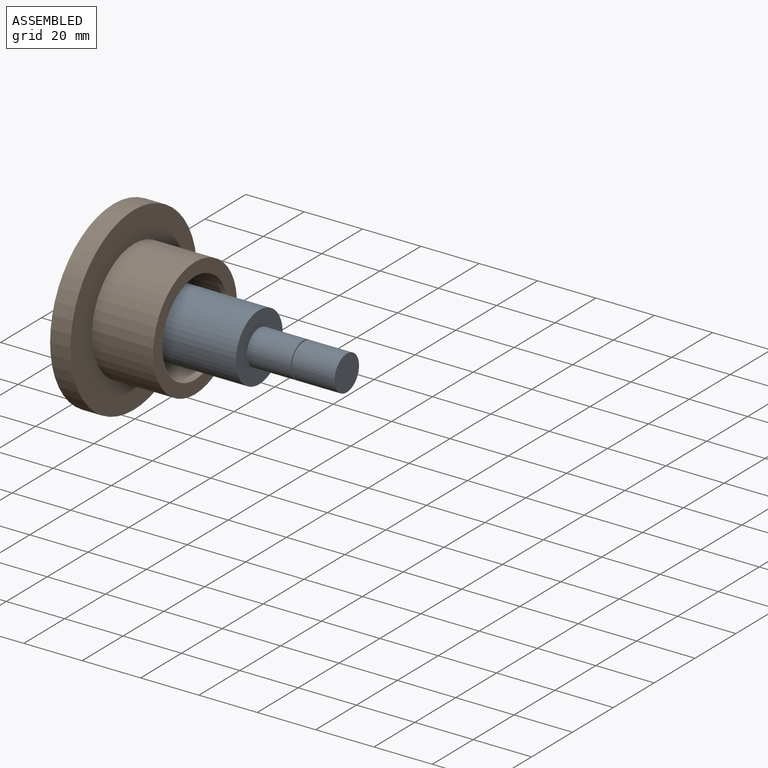
[diagram: assembled view]
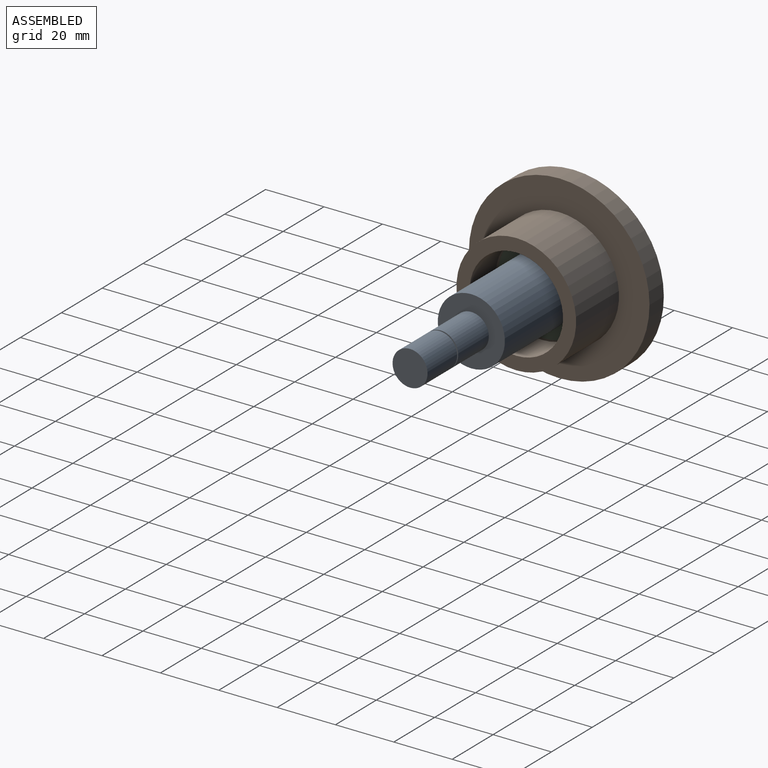
[diagram: assembled view, second angle]
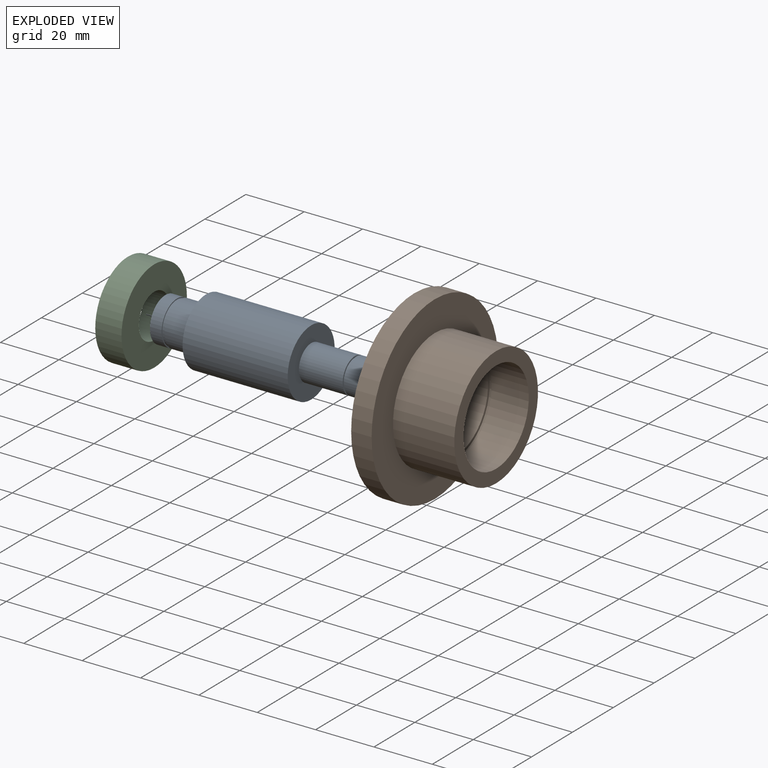
[diagram: exploded view]
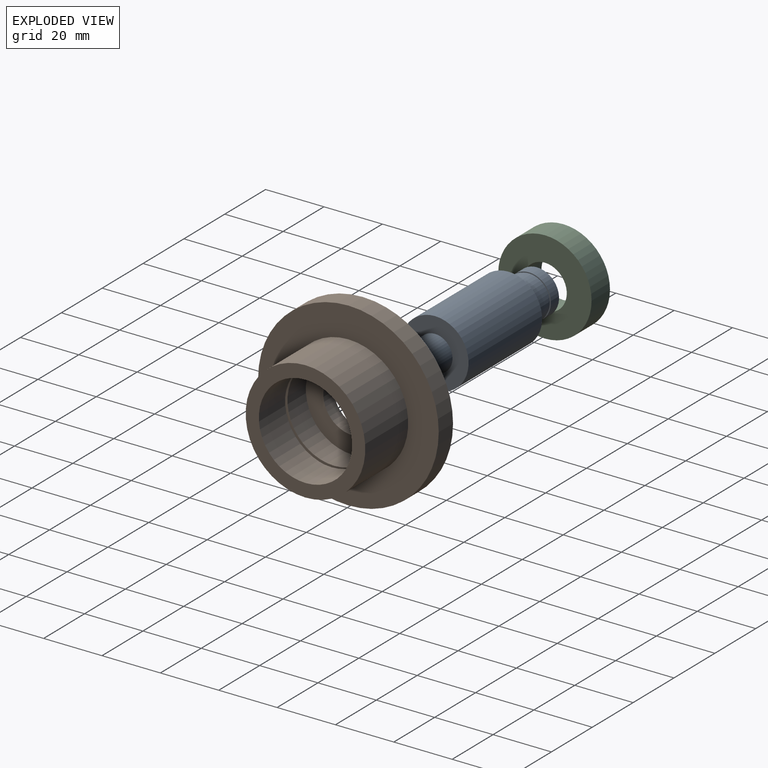
[diagram: exploded view, second angle]
ASSEMBLY  parts=3 mates=4
PART A: 15 faces, bbox 80x23x23 mm
  f0: plane 23x23mm, normal (-1,0,0), area 238.8mm2, adj f1,f14
  f1: cylinder r=7.5mm len=15mm, axis (1,0,0), area 424.1mm2, adj f0,f2
  f2: plane 15x15mm, normal (-1,0,0), area 16.1mm2, adj f1,f3
  f3: cylinder r=7.15mm len=14.3mm, axis (1,0,0), area 44.9mm2, adj f2,f4
  f4: plane 15x15mm, normal (1,0,0), area 16.1mm2, adj f3,f5
  f5: cylinder r=7.5mm len=15mm, axis (1,0,0), area 188.5mm2, adj f4,f6
  f6: plane 15x15mm, normal (-1,0,0), area 176.7mm2, adj f5
  f7: plane 12x12mm, normal (1,0,0), area 113.1mm2, adj f8
  f8: cylinder r=6mm len=14.5mm, axis (1,0,0), area 546.6mm2, adj f7,f9
  f9: plane 12x12mm, normal (-1,0,0), area 18.1mm2, adj f8,f10
  f10: cylinder r=5.5mm len=11mm, axis (1,0,0), area 17.3mm2, adj f9,f11
  f11: plane 12x12mm, normal (1,0,0), area 18.1mm2, adj f10,f12
  f12: cylinder r=6mm len=15mm, axis (1,0,0), area 565.5mm2, adj f11,f13
  f13: plane 23x23mm, normal (1,0,0), area 302.4mm2, adj f12,f14
  f14: cylinder r=11.5mm len=36mm, axis (1,0,0), area 2601.2mm2, adj f0,f13
PART B: 12 faces, bbox 28x61.9x61.9 mm
  f0: plane 61.9x61.9mm, normal (-1,0,0), area 2695.2mm2, adj f1,f11
  f1: cylinder r=10mm len=20mm, axis (1,0,0), area 314.2mm2, adj f0,f2
  f2: plane 32x32mm, normal (1,0,0), area 490.1mm2, adj f1,f3
  f3: cylinder r=16mm len=32mm, axis (1,0,0), area 904.8mm2, adj f2,f4
  f4: plane 33.7x33.7mm, normal (1,0,0), area 87.7mm2, adj f3,f5
  f5: cylinder r=16.85mm len=33.7mm, axis (1,0,0), area 127mm2, adj f4,f6
  f6: plane 33.7x33.7mm, normal (-1,0,0), area 87.7mm2, adj f5,f7
  f7: cylinder r=16mm len=32mm, axis (1,0,0), area 1286.8mm2, adj f6,f8
  f8: plane 41x41mm, normal (1,0,0), area 516mm2, adj f7,f9
  f9: cylinder r=20.5mm len=41mm, axis (1,0,0), area 2704.9mm2, adj f8,f10
  f10: plane 61.9x61.9mm, normal (1,0,0), area 1689.1mm2, adj f9,f11
  f11: cylinder r=30.95mm len=61.9mm, axis (1,0,0), area 1361.3mm2, adj f0,f10
PART C: 4 faces, bbox 9x32x32 mm
  f0: cylinder r=7.5mm len=15mm, axis (1,0,0), area 424.1mm2, adj f1,f3
  f1: plane 32x32mm, normal (1,0,0), area 627.5mm2, adj f0,f2
  f2: cylinder r=16mm len=32mm, axis (1,0,0), area 904.8mm2, adj f1,f3
  f3: plane 32x32mm, normal (-1,0,0), area 627.5mm2, adj f0,f2
PLACE A t=(-68.47,1.62,-18.28)mm
PLACE B t=(-68.47,1.62,-18.28)mm
PLACE C t=(-68.47,1.62,-18.28)mm
MATE slider A.f1 <-> C.f0  axis (-1,0,0) through (-68.47,1.62,-18.28)mm
MATE slider B.f1 <-> C.f0  axis (1,0,0) through (-54.47,1.62,-18.28)mm
MATE planar C.f0 <-> B.f1  axis (-1,0,0) through (-63.47,1.62,-18.28)mm
MATE planar C.f0 <-> A.f1  axis (1,0,0) through (-54.47,1.62,-18.28)mm
